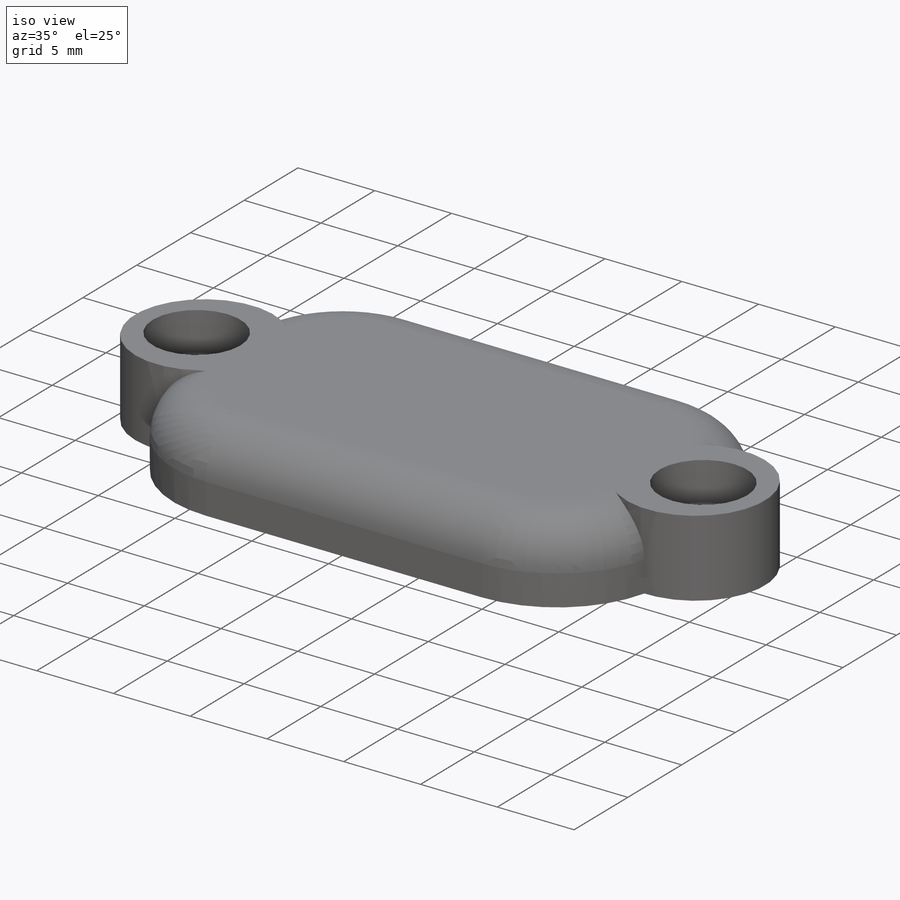
[diagram: iso view]
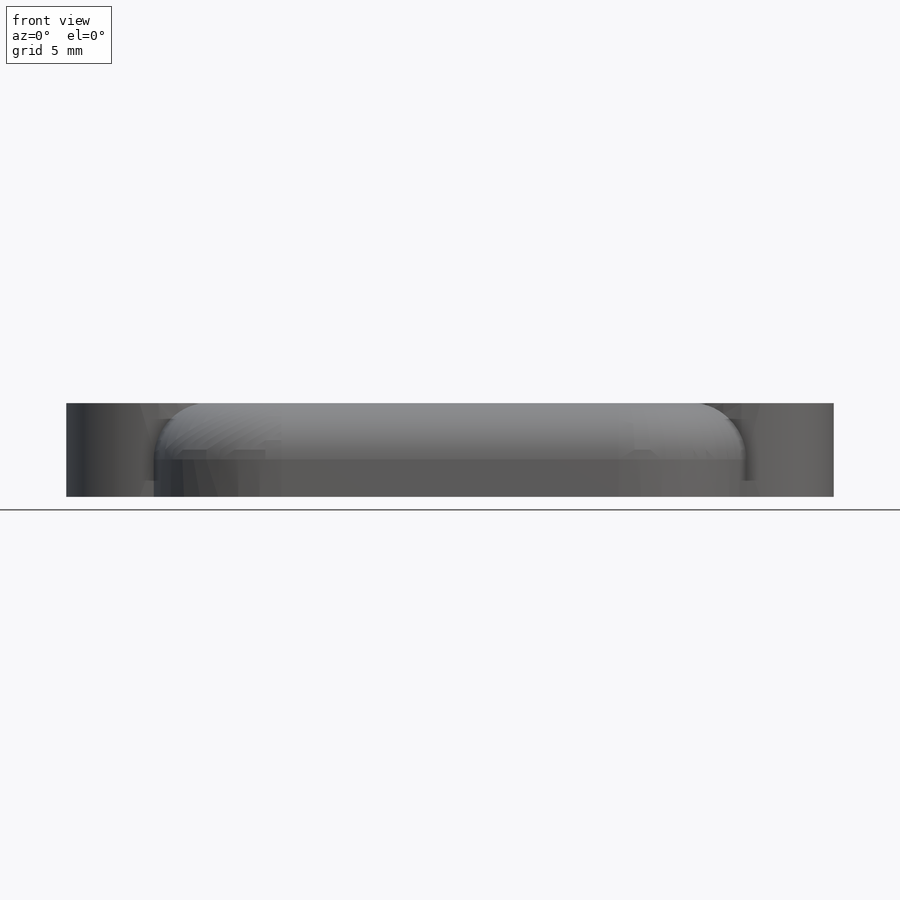
[diagram: front view]
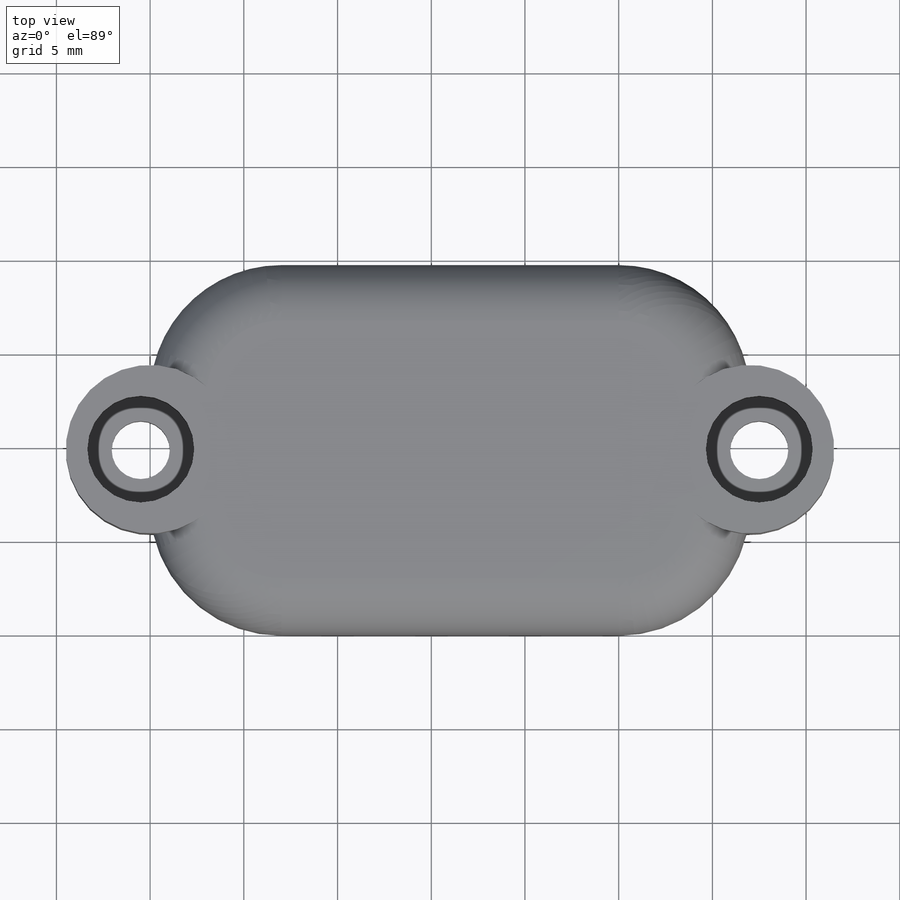
[diagram: top view]
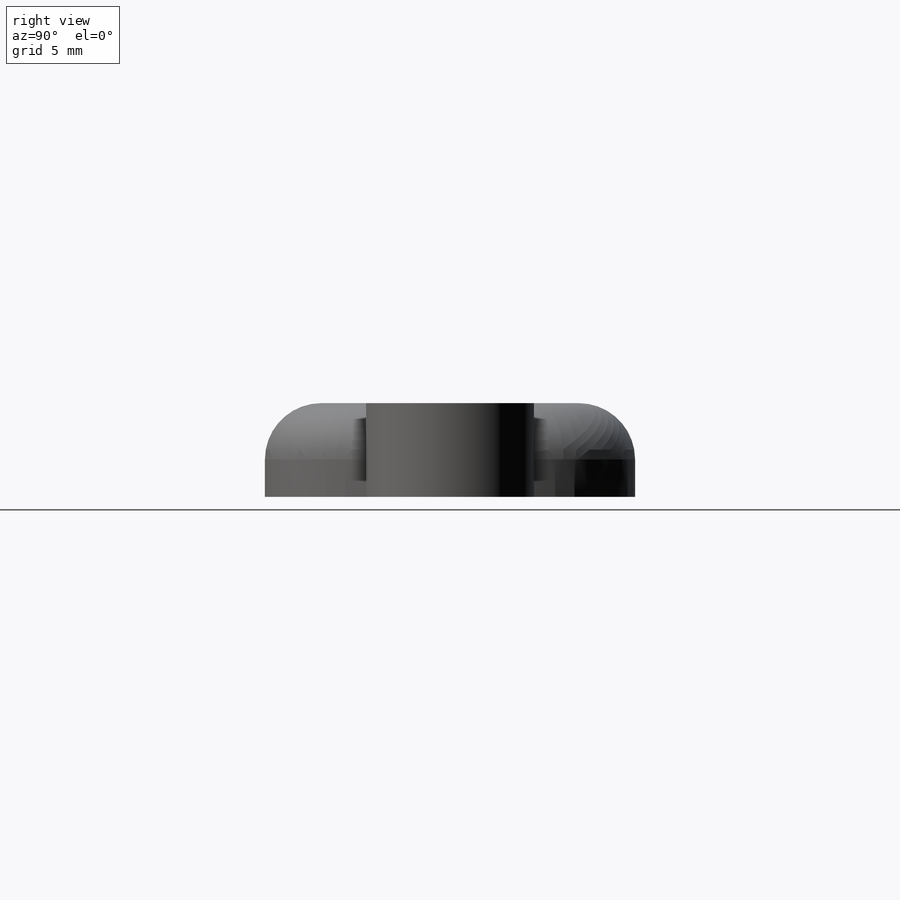
[diagram: right view]
SOLIDWORKS PART (.sldprt)
format: sldprt  version: not decoded by parser v0  size: 221,696 bytes
history: native  units: mm
features: plane x3, sketch x2, material x1, extrude x1, cut_extrude x1, fillet x1 (+9 scaffold rows collapsed)
feature tree (18):
  scaffold x9  (default folders/planes/origin — collapsed)
  material  "Material <sin especificar>"
  plane  "Alzado"
  plane  "Planta"
  plane  "Vista lateral"
  sketch  "Croquis1"  dims[c1.D3=7.0mm c1.D4=9.0mm c1.D5=3.1mm c1.D6=3.1mm c1.D1=19.75mm c1.D2=32.0mm c2.D5=0.5mm]
  extrude  "Saliente-Extruir2"  Depth=5mm
  sketch  "Croquis2"  dims[D1=5.7mm]
  cut_extrude  "Cortar-Extruir1"  Depth=2.5mm
  fillet  "Redondeo2"  Radius=3mm
decode coverage: 5 of 5 modeling features carry decoded parameters
note: suppression state not decoded; provenance and decode notes live in map.json
